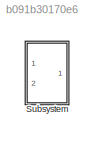
MODEL slx_b091b30170e6
KIND model
CONFIG AbsTol = auto
CONFIG EnableMultiTasking = off
CONFIG FixedStep = auto
CONFIG MaxStep = auto
CONFIG MinStep = auto
CONFIG RelTol = 1e-3
CONFIG SampleTimeConstraint = Unconstrained
CONFIG Solver = VariableStepAuto
CONFIG SolverName = VariableStepAuto
CONFIG StartTime = 0.0
CONFIG StopTime = 10.0
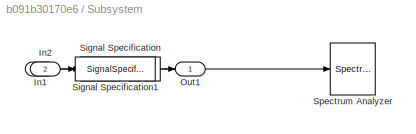
BLOCK [SubSystem] Subsystem
  Ports = [2, 1]
  RequestExecContextInheritance = off
BLOCK [Inport] Subsystem/In1
BLOCK [Inport] Subsystem/In2
  Port = 2
BLOCK [Outport] Subsystem/Out1
BLOCK [SignalSpecification] Subsystem/Signal Specification
  SampleTime = 1/16e4
BLOCK [SignalSpecification] Subsystem/Signal Specification1
  SampleTime = 1/16e4
BLOCK [SpectrumAnalyzer] Subsystem/Spectrum Analyzer
  Ports = [1]
LINE Subsystem/In1:1 -> Subsystem/Signal Specification1:1
LINE Subsystem/In2:1 -> Subsystem/Signal Specification:1
LINE Subsystem/Signal Specification1:1 -> Subsystem/Out1:1
LINE Subsystem/Signal Specification:1 -> Subsystem/Spectrum Analyzer:1
